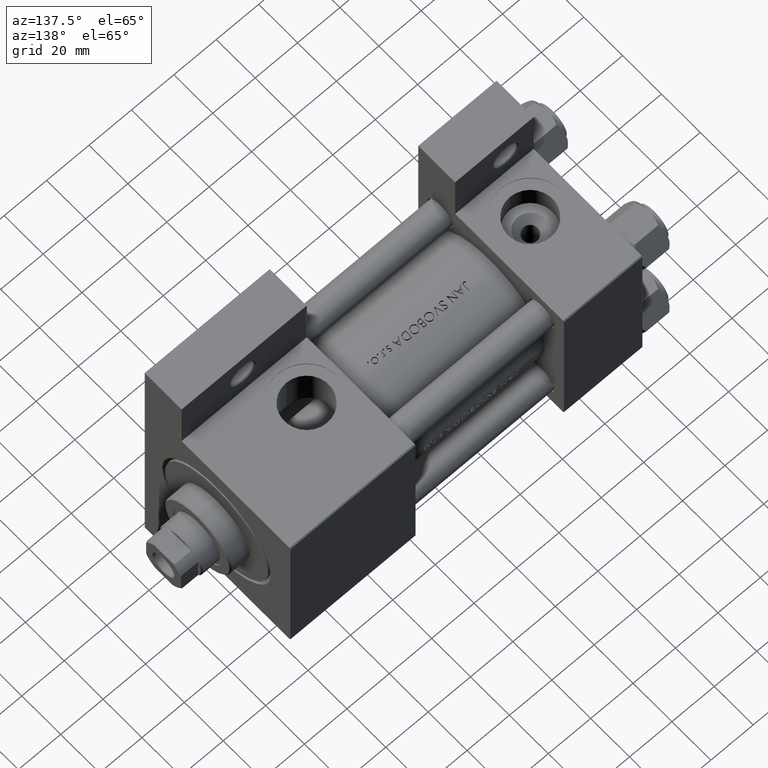
[diagram: clean part render]
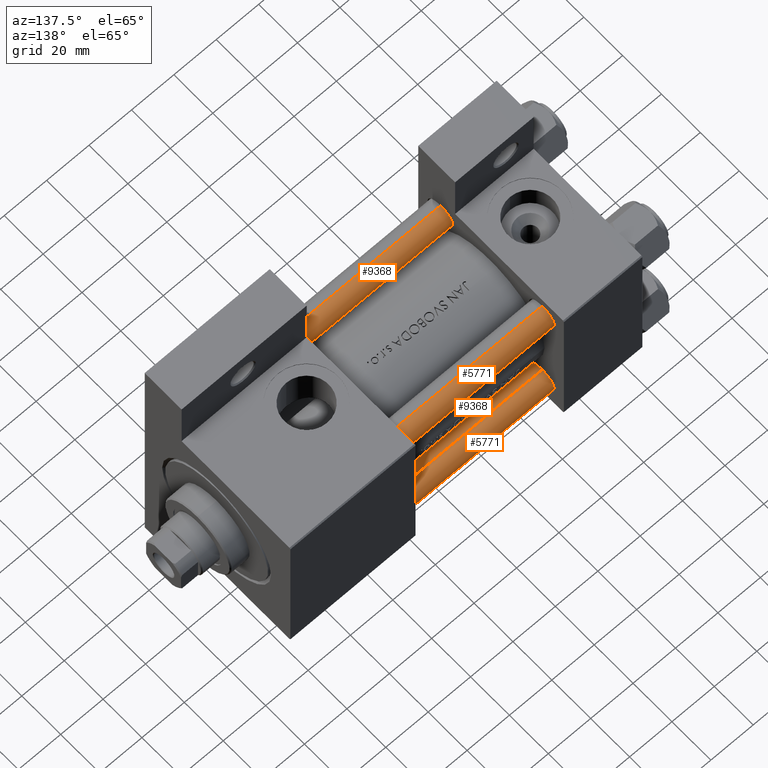
[diagram: same view with one multi-face feature highlighted, each face labeled with its STEP entity id]
A machine part, auxiliary view. The highlighted faces form ONE feature: a constant-radius fillet chain: 4 tangent blend faces with common blend radius 6 mm. The faces share edges in the B-rep.
Their STEP definitions:
[1] entity #5771 (Cylinder):
#582 = ORIENTED_EDGE ( 'NONE', *, *, #25681, .F. ) ;
#1418 = VERTEX_POINT ( 'NONE', #3044 ) ;
#3044 = CARTESIAN_POINT ( 'NONE',  ( 6.000000000000000888, 7.347880794884120722E-16, 135.5000000000000000 ) ) ;
#3046 = CARTESIAN_POINT ( 'NONE',  ( 0.000000000000000000, 0.000000000000000000, 135.5000000000000000 ) ) ;
#3996 = AXIS2_PLACEMENT_3D ( 'NONE', #4230, #8725, #34374 ) ;
#4230 = CARTESIAN_POINT ( 'NONE',  ( 0.000000000000000000, 0.000000000000000000, 0.4999999999999726885 ) ) ;
#5771 = ADVANCED_FACE ( 'NONE', ( #34459 ), #31206, .T. ) ;
#6310 = AXIS2_PLACEMENT_3D ( 'NONE', #3046, #18232, #18724 ) ;
#6353 = ORIENTED_EDGE ( 'NONE', *, *, #31422, .T. ) ;
#8211 = CARTESIAN_POINT ( 'NONE',  ( -6.000000000000000888, 0.000000000000000000, 135.5000000000000000 ) ) ;
#8317 = CARTESIAN_POINT ( 'NONE',  ( 0.000000000000000000, 0.000000000000000000, 136.0000000000000000 ) ) ;
#8725 = DIRECTION ( 'NONE',  ( -0.000000000000000000, -0.000000000000000000, 1.000000000000000000 ) ) ;
#11072 = VERTEX_POINT ( 'NONE', #28467 ) ;
#13929 = VERTEX_POINT ( 'NONE', #22657 ) ;
#18232 = DIRECTION ( 'NONE',  ( 0.000000000000000000, 0.000000000000000000, -1.000000000000000000 ) ) ;
#18724 = DIRECTION ( 'NONE',  ( 1.000000000000000000, 0.000000000000000000, 0.000000000000000000 ) ) ;
#18796 = LINE ( 'NONE', #44279, #41767 ) ;
#22249 = LINE ( 'NONE', #37467, #25399 ) ;
#22657 = CARTESIAN_POINT ( 'NONE',  ( 6.000000000000000888, 7.347880794884120722E-16, 0.4999999999999726885 ) ) ;
#23181 = DIRECTION ( 'NONE',  ( -0.000000000000000000, -0.000000000000000000, -1.000000000000000000 ) ) ;
#25399 = VECTOR ( 'NONE', #23181, 1000.000000000000000 ) ;
#25681 = EDGE_CURVE ( 'NONE', #48902, #11072, #22249, .T. ) ;
#28467 = CARTESIAN_POINT ( 'NONE',  ( -6.000000000000000888, 0.000000000000000000, 0.4999999999999726885 ) ) ;
#29189 = EDGE_CURVE ( 'NONE', #48902, #1418, #39701, .T. ) ;
#29608 = ORIENTED_EDGE ( 'NONE', *, *, #49191, .T. ) ;
#30217 = DIRECTION ( 'NONE',  ( -0.000000000000000000, -0.000000000000000000, -1.000000000000000000 ) ) ;
#31206 = CYLINDRICAL_SURFACE ( 'NONE', #38967, 6.000000000000000888 ) ;
#31422 = EDGE_CURVE ( 'NONE', #13929, #11072, #43741, .T. ) ;
#34076 = EDGE_LOOP ( 'NONE', ( #41677, #29608, #6353, #582 ) ) ;
#34374 = DIRECTION ( 'NONE',  ( 1.000000000000000000, 0.000000000000000000, 0.000000000000000000 ) ) ;
#34459 = FACE_OUTER_BOUND ( 'NONE', #34076, .T. ) ;
#37467 = CARTESIAN_POINT ( 'NONE',  ( -6.000000000000000888, 0.000000000000000000, 136.0000000000000000 ) ) ;
#38967 = AXIS2_PLACEMENT_3D ( 'NONE', #8317, #30217, #42425 ) ;
#39701 = CIRCLE ( 'NONE', #6310, 6.000000000000000888 ) ;
#41677 = ORIENTED_EDGE ( 'NONE', *, *, #29189, .T. ) ;
#41767 = VECTOR ( 'NONE', #45682, 1000.000000000000000 ) ;
#42425 = DIRECTION ( 'NONE',  ( -1.000000000000000000, 0.000000000000000000, 0.000000000000000000 ) ) ;
#43741 = CIRCLE ( 'NONE', #3996, 6.000000000000000888 ) ;
#44279 = CARTESIAN_POINT ( 'NONE',  ( 6.000000000000000888, 7.347880794884120722E-16, 136.0000000000000000 ) ) ;
#45682 = DIRECTION ( 'NONE',  ( -0.000000000000000000, -0.000000000000000000, -1.000000000000000000 ) ) ;
#48902 = VERTEX_POINT ( 'NONE', #8211 ) ;
#49191 = EDGE_CURVE ( 'NONE', #1418, #13929, #18796, .T. ) ;
[2] entity #9368 (Cylinder):
#1418 = VERTEX_POINT ( 'NONE', #3044 ) ;
#3044 = CARTESIAN_POINT ( 'NONE',  ( 6.000000000000000888, 7.347880794884120722E-16, 135.5000000000000000 ) ) ;
#4897 = ORIENTED_EDGE ( 'NONE', *, *, #46688, .T. ) ;
#5235 = CIRCLE ( 'NONE', #45782, 6.000000000000000888 ) ;
#8211 = CARTESIAN_POINT ( 'NONE',  ( -6.000000000000000888, 0.000000000000000000, 135.5000000000000000 ) ) ;
#9368 = ADVANCED_FACE ( 'NONE', ( #36337 ), #13174, .T. ) ;
#9883 = AXIS2_PLACEMENT_3D ( 'NONE', #32101, #40065, #28352 ) ;
#10677 = ORIENTED_EDGE ( 'NONE', *, *, #25681, .T. ) ;
#11072 = VERTEX_POINT ( 'NONE', #28467 ) ;
#12353 = DIRECTION ( 'NONE',  ( 1.000000000000000000, 0.000000000000000000, 0.000000000000000000 ) ) ;
#13174 = CYLINDRICAL_SURFACE ( 'NONE', #9883, 6.000000000000000888 ) ;
#13929 = VERTEX_POINT ( 'NONE', #22657 ) ;
#15828 = CARTESIAN_POINT ( 'NONE',  ( 0.000000000000000000, 0.000000000000000000, 0.4999999999999726885 ) ) ;
#18796 = LINE ( 'NONE', #44279, #41767 ) ;
#19932 = DIRECTION ( 'NONE',  ( 1.000000000000000000, 0.000000000000000000, 0.000000000000000000 ) ) ;
#22249 = LINE ( 'NONE', #37467, #25399 ) ;
#22657 = CARTESIAN_POINT ( 'NONE',  ( 6.000000000000000888, 7.347880794884120722E-16, 0.4999999999999726885 ) ) ;
#23181 = DIRECTION ( 'NONE',  ( -0.000000000000000000, -0.000000000000000000, -1.000000000000000000 ) ) ;
#24152 = CARTESIAN_POINT ( 'NONE',  ( 0.000000000000000000, 0.000000000000000000, 135.5000000000000000 ) ) ;
#25399 = VECTOR ( 'NONE', #23181, 1000.000000000000000 ) ;
#25681 = EDGE_CURVE ( 'NONE', #48902, #11072, #22249, .T. ) ;
#25730 = CIRCLE ( 'NONE', #35278, 6.000000000000000888 ) ;
#28352 = DIRECTION ( 'NONE',  ( -1.000000000000000000, 0.000000000000000000, 0.000000000000000000 ) ) ;
#28467 = CARTESIAN_POINT ( 'NONE',  ( -6.000000000000000888, 0.000000000000000000, 0.4999999999999726885 ) ) ;
#28757 = ORIENTED_EDGE ( 'NONE', *, *, #49191, .F. ) ;
#30719 = ORIENTED_EDGE ( 'NONE', *, *, #41154, .T. ) ;
#32101 = CARTESIAN_POINT ( 'NONE',  ( 0.000000000000000000, 0.000000000000000000, 136.0000000000000000 ) ) ;
#35278 = AXIS2_PLACEMENT_3D ( 'NONE', #15828, #46205, #12353 ) ;
#36337 = FACE_OUTER_BOUND ( 'NONE', #45271, .T. ) ;
#37467 = CARTESIAN_POINT ( 'NONE',  ( -6.000000000000000888, 0.000000000000000000, 136.0000000000000000 ) ) ;
#39355 = DIRECTION ( 'NONE',  ( 0.000000000000000000, 0.000000000000000000, -1.000000000000000000 ) ) ;
#40065 = DIRECTION ( 'NONE',  ( -0.000000000000000000, -0.000000000000000000, -1.000000000000000000 ) ) ;
#41154 = EDGE_CURVE ( 'NONE', #11072, #13929, #25730, .T. ) ;
#41767 = VECTOR ( 'NONE', #45682, 1000.000000000000000 ) ;
#44279 = CARTESIAN_POINT ( 'NONE',  ( 6.000000000000000888, 7.347880794884120722E-16, 136.0000000000000000 ) ) ;
#45271 = EDGE_LOOP ( 'NONE', ( #28757, #4897, #10677, #30719 ) ) ;
#45682 = DIRECTION ( 'NONE',  ( -0.000000000000000000, -0.000000000000000000, -1.000000000000000000 ) ) ;
#45782 = AXIS2_PLACEMENT_3D ( 'NONE', #24152, #39355, #19932 ) ;
#46205 = DIRECTION ( 'NONE',  ( -0.000000000000000000, -0.000000000000000000, 1.000000000000000000 ) ) ;
#46688 = EDGE_CURVE ( 'NONE', #1418, #48902, #5235, .T. ) ;
#48902 = VERTEX_POINT ( 'NONE', #8211 ) ;
#49191 = EDGE_CURVE ( 'NONE', #1418, #13929, #18796, .T. ) ;
[3] entity #5771 (Cylinder):
#582 = ORIENTED_EDGE ( 'NONE', *, *, #25681, .F. ) ;
#1418 = VERTEX_POINT ( 'NONE', #3044 ) ;
#3044 = CARTESIAN_POINT ( 'NONE',  ( 6.000000000000000888, 7.347880794884120722E-16, 135.5000000000000000 ) ) ;
#3046 = CARTESIAN_POINT ( 'NONE',  ( 0.000000000000000000, 0.000000000000000000, 135.5000000000000000 ) ) ;
#3996 = AXIS2_PLACEMENT_3D ( 'NONE', #4230, #8725, #34374 ) ;
#4230 = CARTESIAN_POINT ( 'NONE',  ( 0.000000000000000000, 0.000000000000000000, 0.4999999999999726885 ) ) ;
#5771 = ADVANCED_FACE ( 'NONE', ( #34459 ), #31206, .T. ) ;
#6310 = AXIS2_PLACEMENT_3D ( 'NONE', #3046, #18232, #18724 ) ;
#6353 = ORIENTED_EDGE ( 'NONE', *, *, #31422, .T. ) ;
#8211 = CARTESIAN_POINT ( 'NONE',  ( -6.000000000000000888, 0.000000000000000000, 135.5000000000000000 ) ) ;
#8317 = CARTESIAN_POINT ( 'NONE',  ( 0.000000000000000000, 0.000000000000000000, 136.0000000000000000 ) ) ;
#8725 = DIRECTION ( 'NONE',  ( -0.000000000000000000, -0.000000000000000000, 1.000000000000000000 ) ) ;
#11072 = VERTEX_POINT ( 'NONE', #28467 ) ;
#13929 = VERTEX_POINT ( 'NONE', #22657 ) ;
#18232 = DIRECTION ( 'NONE',  ( 0.000000000000000000, 0.000000000000000000, -1.000000000000000000 ) ) ;
#18724 = DIRECTION ( 'NONE',  ( 1.000000000000000000, 0.000000000000000000, 0.000000000000000000 ) ) ;
#18796 = LINE ( 'NONE', #44279, #41767 ) ;
#22249 = LINE ( 'NONE', #37467, #25399 ) ;
#22657 = CARTESIAN_POINT ( 'NONE',  ( 6.000000000000000888, 7.347880794884120722E-16, 0.4999999999999726885 ) ) ;
#23181 = DIRECTION ( 'NONE',  ( -0.000000000000000000, -0.000000000000000000, -1.000000000000000000 ) ) ;
#25399 = VECTOR ( 'NONE', #23181, 1000.000000000000000 ) ;
#25681 = EDGE_CURVE ( 'NONE', #48902, #11072, #22249, .T. ) ;
#28467 = CARTESIAN_POINT ( 'NONE',  ( -6.000000000000000888, 0.000000000000000000, 0.4999999999999726885 ) ) ;
#29189 = EDGE_CURVE ( 'NONE', #48902, #1418, #39701, .T. ) ;
#29608 = ORIENTED_EDGE ( 'NONE', *, *, #49191, .T. ) ;
#30217 = DIRECTION ( 'NONE',  ( -0.000000000000000000, -0.000000000000000000, -1.000000000000000000 ) ) ;
#31206 = CYLINDRICAL_SURFACE ( 'NONE', #38967, 6.000000000000000888 ) ;
#31422 = EDGE_CURVE ( 'NONE', #13929, #11072, #43741, .T. ) ;
#34076 = EDGE_LOOP ( 'NONE', ( #41677, #29608, #6353, #582 ) ) ;
#34374 = DIRECTION ( 'NONE',  ( 1.000000000000000000, 0.000000000000000000, 0.000000000000000000 ) ) ;
#34459 = FACE_OUTER_BOUND ( 'NONE', #34076, .T. ) ;
#37467 = CARTESIAN_POINT ( 'NONE',  ( -6.000000000000000888, 0.000000000000000000, 136.0000000000000000 ) ) ;
#38967 = AXIS2_PLACEMENT_3D ( 'NONE', #8317, #30217, #42425 ) ;
#39701 = CIRCLE ( 'NONE', #6310, 6.000000000000000888 ) ;
#41677 = ORIENTED_EDGE ( 'NONE', *, *, #29189, .T. ) ;
#41767 = VECTOR ( 'NONE', #45682, 1000.000000000000000 ) ;
#42425 = DIRECTION ( 'NONE',  ( -1.000000000000000000, 0.000000000000000000, 0.000000000000000000 ) ) ;
#43741 = CIRCLE ( 'NONE', #3996, 6.000000000000000888 ) ;
#44279 = CARTESIAN_POINT ( 'NONE',  ( 6.000000000000000888, 7.347880794884120722E-16, 136.0000000000000000 ) ) ;
#45682 = DIRECTION ( 'NONE',  ( -0.000000000000000000, -0.000000000000000000, -1.000000000000000000 ) ) ;
#48902 = VERTEX_POINT ( 'NONE', #8211 ) ;
#49191 = EDGE_CURVE ( 'NONE', #1418, #13929, #18796, .T. ) ;
[4] entity #9368 (Cylinder):
#1418 = VERTEX_POINT ( 'NONE', #3044 ) ;
#3044 = CARTESIAN_POINT ( 'NONE',  ( 6.000000000000000888, 7.347880794884120722E-16, 135.5000000000000000 ) ) ;
#4897 = ORIENTED_EDGE ( 'NONE', *, *, #46688, .T. ) ;
#5235 = CIRCLE ( 'NONE', #45782, 6.000000000000000888 ) ;
#8211 = CARTESIAN_POINT ( 'NONE',  ( -6.000000000000000888, 0.000000000000000000, 135.5000000000000000 ) ) ;
#9368 = ADVANCED_FACE ( 'NONE', ( #36337 ), #13174, .T. ) ;
#9883 = AXIS2_PLACEMENT_3D ( 'NONE', #32101, #40065, #28352 ) ;
#10677 = ORIENTED_EDGE ( 'NONE', *, *, #25681, .T. ) ;
#11072 = VERTEX_POINT ( 'NONE', #28467 ) ;
#12353 = DIRECTION ( 'NONE',  ( 1.000000000000000000, 0.000000000000000000, 0.000000000000000000 ) ) ;
#13174 = CYLINDRICAL_SURFACE ( 'NONE', #9883, 6.000000000000000888 ) ;
#13929 = VERTEX_POINT ( 'NONE', #22657 ) ;
#15828 = CARTESIAN_POINT ( 'NONE',  ( 0.000000000000000000, 0.000000000000000000, 0.4999999999999726885 ) ) ;
#18796 = LINE ( 'NONE', #44279, #41767 ) ;
#19932 = DIRECTION ( 'NONE',  ( 1.000000000000000000, 0.000000000000000000, 0.000000000000000000 ) ) ;
#22249 = LINE ( 'NONE', #37467, #25399 ) ;
#22657 = CARTESIAN_POINT ( 'NONE',  ( 6.000000000000000888, 7.347880794884120722E-16, 0.4999999999999726885 ) ) ;
#23181 = DIRECTION ( 'NONE',  ( -0.000000000000000000, -0.000000000000000000, -1.000000000000000000 ) ) ;
#24152 = CARTESIAN_POINT ( 'NONE',  ( 0.000000000000000000, 0.000000000000000000, 135.5000000000000000 ) ) ;
#25399 = VECTOR ( 'NONE', #23181, 1000.000000000000000 ) ;
#25681 = EDGE_CURVE ( 'NONE', #48902, #11072, #22249, .T. ) ;
#25730 = CIRCLE ( 'NONE', #35278, 6.000000000000000888 ) ;
#28352 = DIRECTION ( 'NONE',  ( -1.000000000000000000, 0.000000000000000000, 0.000000000000000000 ) ) ;
#28467 = CARTESIAN_POINT ( 'NONE',  ( -6.000000000000000888, 0.000000000000000000, 0.4999999999999726885 ) ) ;
#28757 = ORIENTED_EDGE ( 'NONE', *, *, #49191, .F. ) ;
#30719 = ORIENTED_EDGE ( 'NONE', *, *, #41154, .T. ) ;
#32101 = CARTESIAN_POINT ( 'NONE',  ( 0.000000000000000000, 0.000000000000000000, 136.0000000000000000 ) ) ;
#35278 = AXIS2_PLACEMENT_3D ( 'NONE', #15828, #46205, #12353 ) ;
#36337 = FACE_OUTER_BOUND ( 'NONE', #45271, .T. ) ;
#37467 = CARTESIAN_POINT ( 'NONE',  ( -6.000000000000000888, 0.000000000000000000, 136.0000000000000000 ) ) ;
#39355 = DIRECTION ( 'NONE',  ( 0.000000000000000000, 0.000000000000000000, -1.000000000000000000 ) ) ;
#40065 = DIRECTION ( 'NONE',  ( -0.000000000000000000, -0.000000000000000000, -1.000000000000000000 ) ) ;
#41154 = EDGE_CURVE ( 'NONE', #11072, #13929, #25730, .T. ) ;
#41767 = VECTOR ( 'NONE', #45682, 1000.000000000000000 ) ;
#44279 = CARTESIAN_POINT ( 'NONE',  ( 6.000000000000000888, 7.347880794884120722E-16, 136.0000000000000000 ) ) ;
#45271 = EDGE_LOOP ( 'NONE', ( #28757, #4897, #10677, #30719 ) ) ;
#45682 = DIRECTION ( 'NONE',  ( -0.000000000000000000, -0.000000000000000000, -1.000000000000000000 ) ) ;
#45782 = AXIS2_PLACEMENT_3D ( 'NONE', #24152, #39355, #19932 ) ;
#46205 = DIRECTION ( 'NONE',  ( -0.000000000000000000, -0.000000000000000000, 1.000000000000000000 ) ) ;
#46688 = EDGE_CURVE ( 'NONE', #1418, #48902, #5235, .T. ) ;
#48902 = VERTEX_POINT ( 'NONE', #8211 ) ;
#49191 = EDGE_CURVE ( 'NONE', #1418, #13929, #18796, .T. ) ;